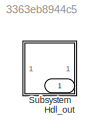
MODEL slx_3363eb8944c5
KIND model
CONFIG AbsTol = auto
CONFIG EnableMultiTasking = off
CONFIG FixedStep = auto
CONFIG MaxStep = auto
CONFIG MinStep = auto
CONFIG RelTol = 1e-3
CONFIG SampleTimeConstraint = Unconstrained
CONFIG SolverName = VariableStepAuto
CONFIG StartTime = 0.0
CONFIG StopTime = 10.0
BLOCK [Outport] Hdl_out
  OutDataTypeStr = uint8
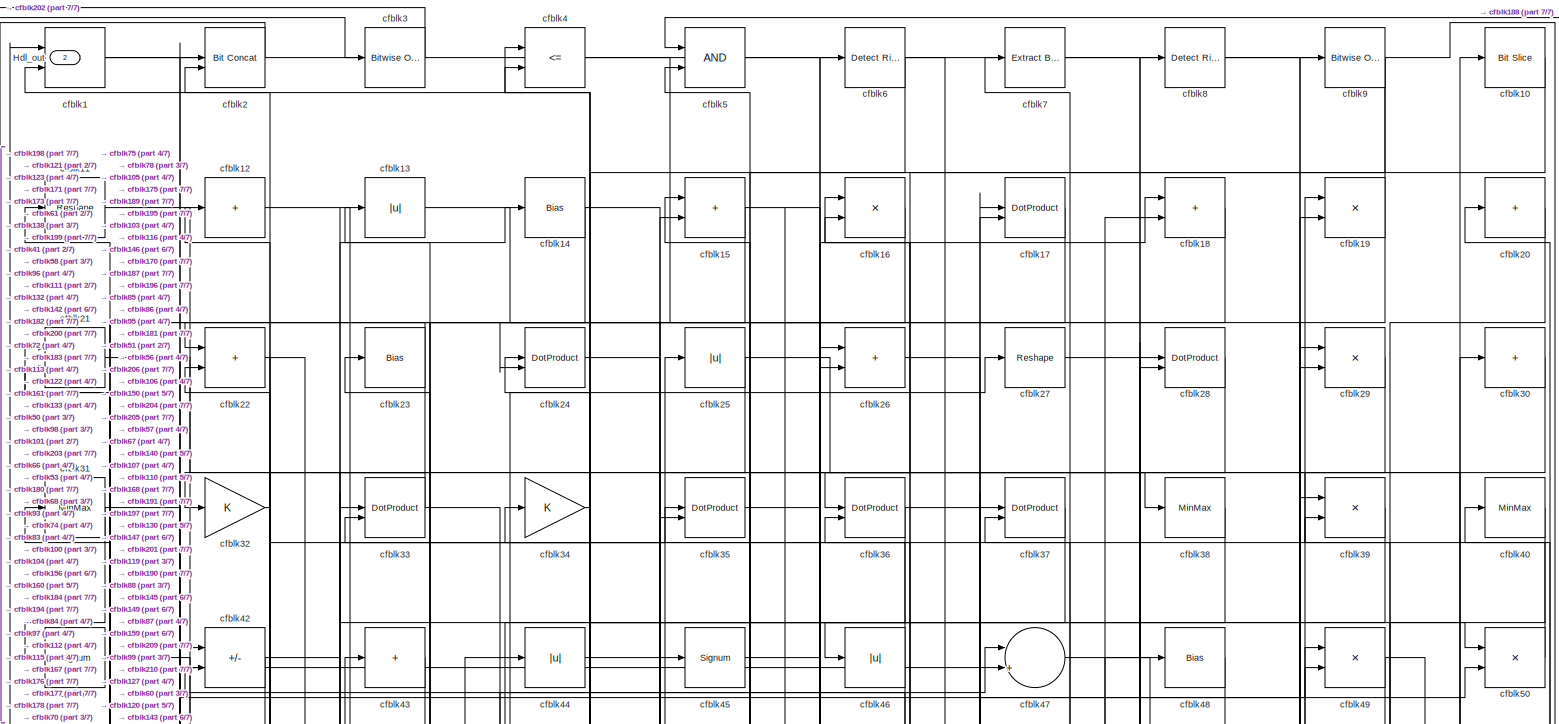
[diagram: Subsystem - part 1/7, full width, top band]
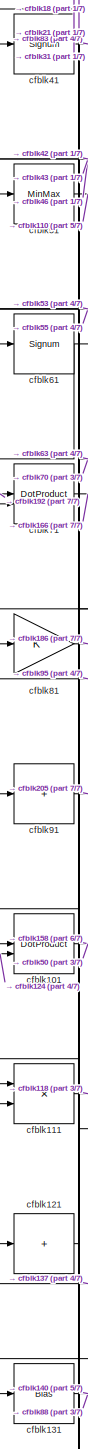
[diagram: Subsystem - part 2/7, middle left region]
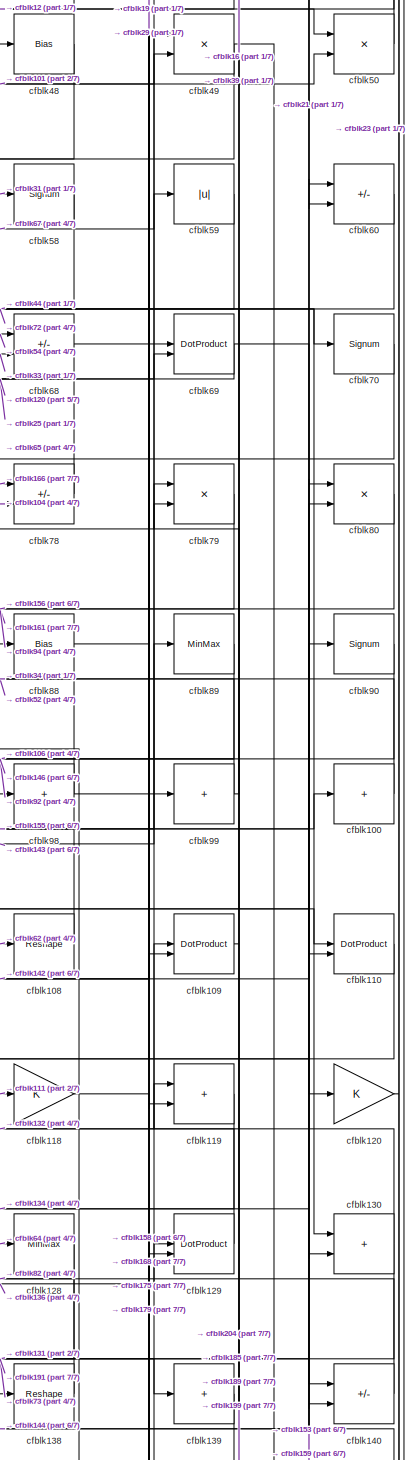
[diagram: Subsystem - part 3/7, middle right region]
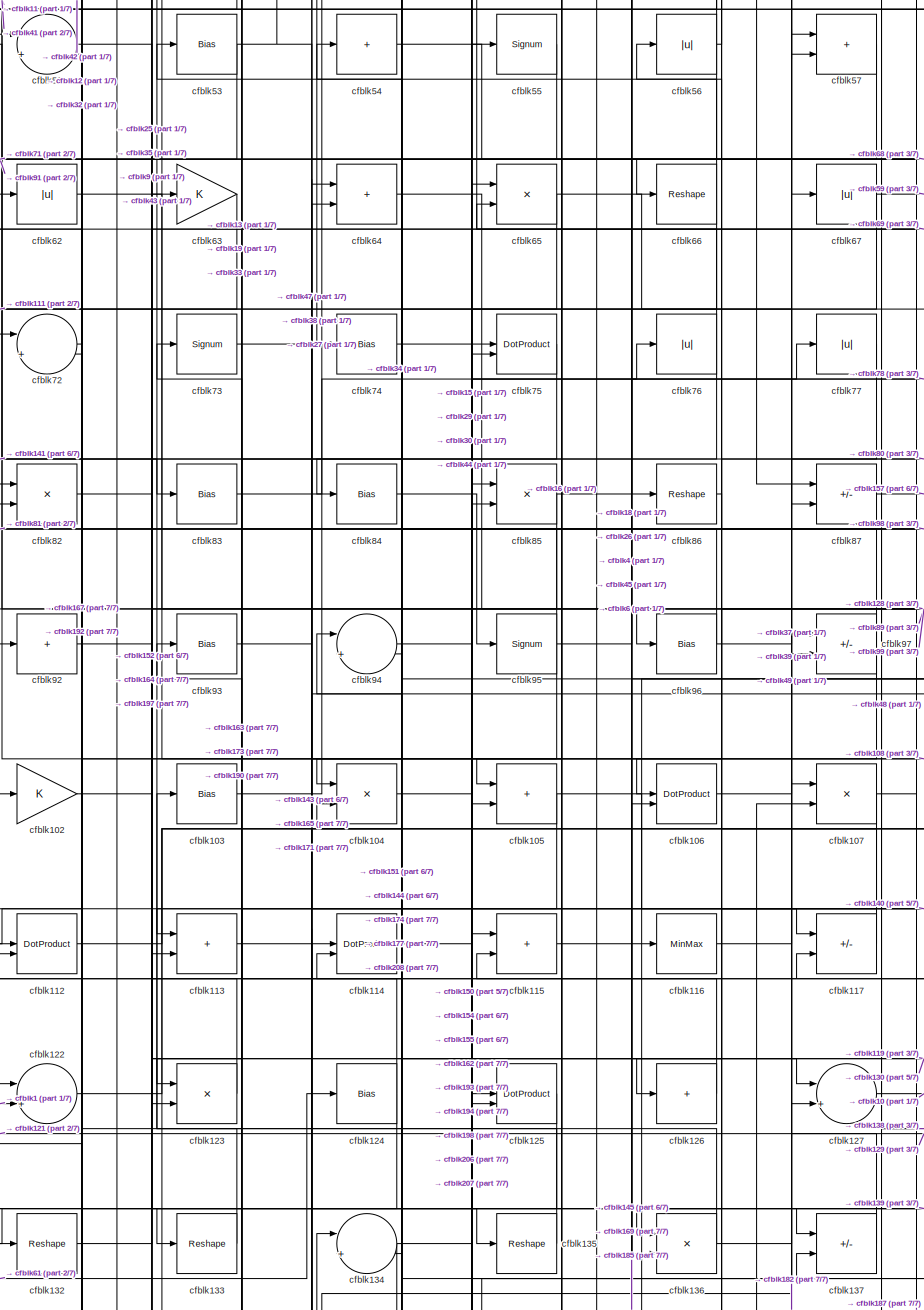
[diagram: Subsystem - part 4/7, central region]
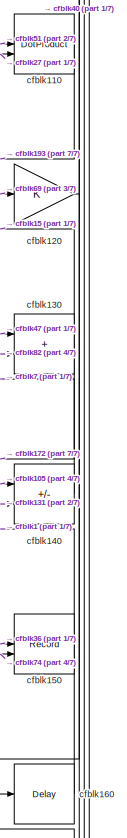
[diagram: Subsystem - part 5/7, middle right region]
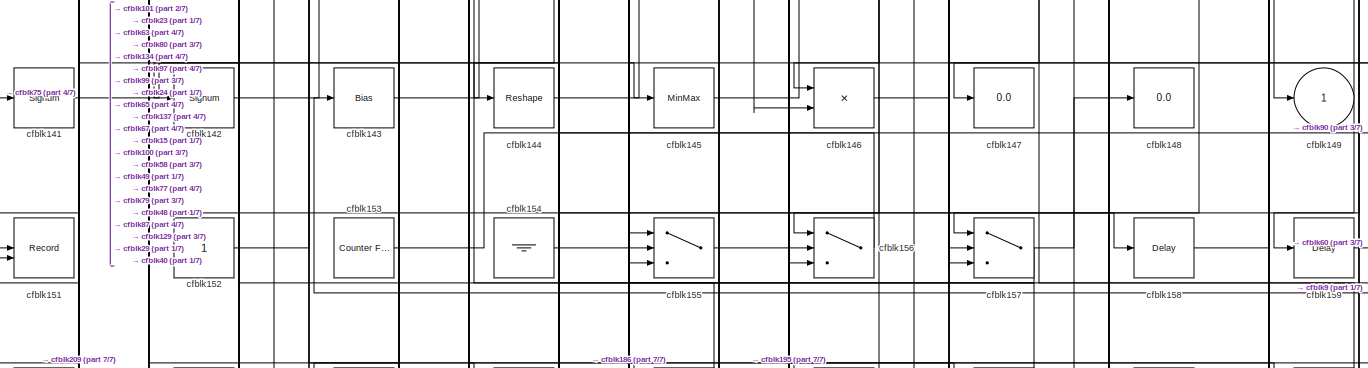
[diagram: Subsystem - part 6/7, full width, bottom band]
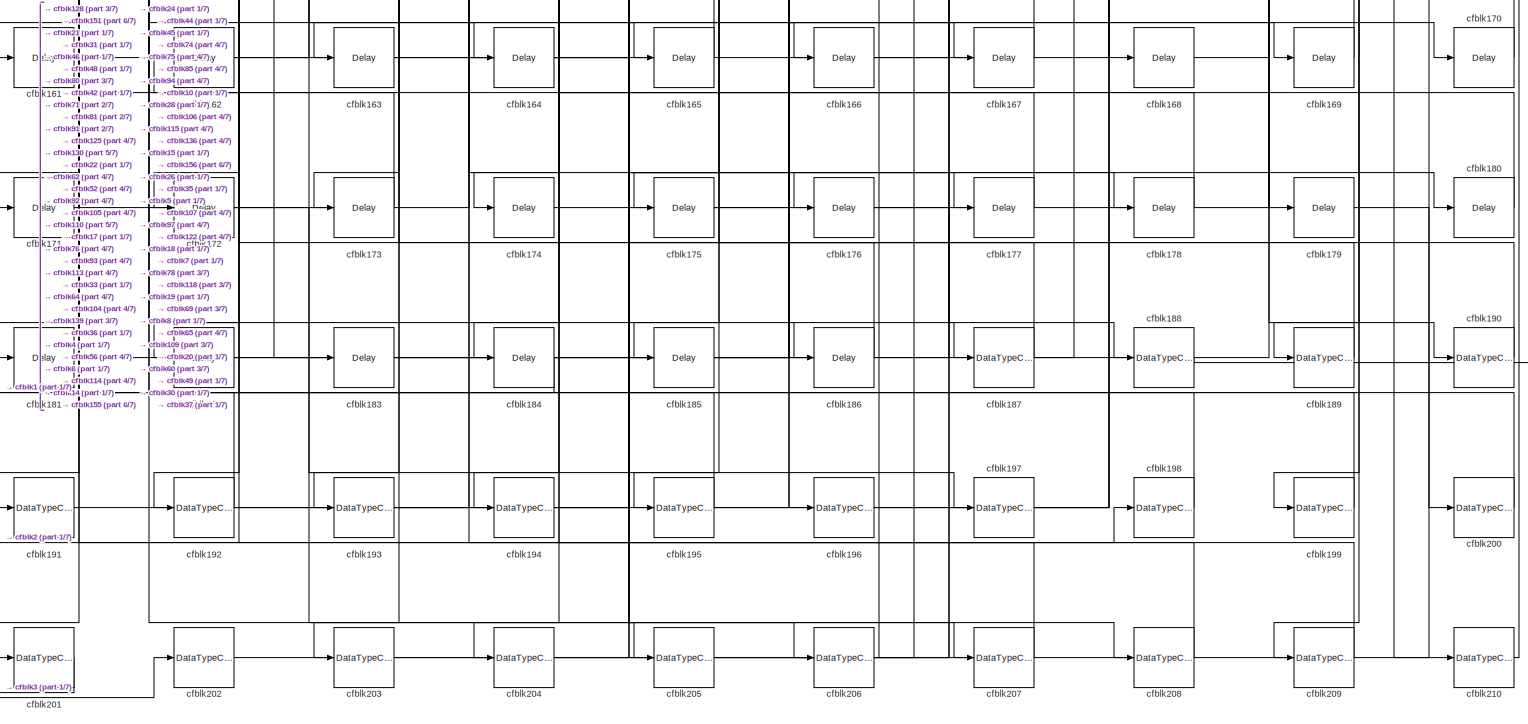
[diagram: Subsystem - part 7/7, full width, bottom band]
BLOCK [SubSystem] Subsystem
BLOCK [Outport] Subsystem/Hdl_out
  OutDataTypeStr = uint8
  Port = 2
BLOCK [RelationalOperator] Subsystem/cfblk1
  InputSameDT = off
  Operator = <=
  OutDataTypeStr = boolean
BLOCK [Reference] Subsystem/cfblk10  REF=hdlsllib/Logic and Bit
Operations/Bit Slice
  SourceBlock = hdlsllib/Logic and Bit\nOperations/Bit Slice
  SourceType = Bit Slice
BLOCK [Sum] Subsystem/cfblk100
  IconShape = rectangular
  Inputs = +
  OutDataTypeStr = uint8
BLOCK [DotProduct] Subsystem/cfblk101
  OutDataTypeStr = uint8
BLOCK [Gain] Subsystem/cfblk102
  OutDataTypeStr = uint8
BLOCK [Bias] Subsystem/cfblk103
  Bias = 0.0
  SaturateOnIntegerOverflow = off
BLOCK [Product] Subsystem/cfblk104
  Inputs = */
  OutDataTypeStr = uint8
  RndMeth = Zero
  SaturateOnIntegerOverflow = on
BLOCK [Sum] Subsystem/cfblk105
  IconShape = rectangular
  OutDataTypeStr = uint8
BLOCK [DotProduct] Subsystem/cfblk106
  OutDataTypeStr = uint8
BLOCK [Product] Subsystem/cfblk107
  Inputs = */
  OutDataTypeStr = uint8
  RndMeth = Zero
  SaturateOnIntegerOverflow = on
BLOCK [Reshape] Subsystem/cfblk108
BLOCK [DotProduct] Subsystem/cfblk109
  OutDataTypeStr = uint8
BLOCK [Reshape] Subsystem/cfblk11
BLOCK [DotProduct] Subsystem/cfblk110
  OutDataTypeStr = uint8
BLOCK [Product] Subsystem/cfblk111
  Inputs = */
  OutDataTypeStr = uint8
  RndMeth = Zero
  SaturateOnIntegerOverflow = on
BLOCK [DotProduct] Subsystem/cfblk112
  OutDataTypeStr = uint8
BLOCK [Sum] Subsystem/cfblk113
  IconShape = rectangular
  OutDataTypeStr = uint8
BLOCK [DotProduct] Subsystem/cfblk114
  OutDataTypeStr = uint8
BLOCK [Sum] Subsystem/cfblk115
  IconShape = rectangular
  OutDataTypeStr = uint8
BLOCK [MinMax] Subsystem/cfblk116
  OutDataTypeStr = uint8
BLOCK [Sum] Subsystem/cfblk117
  IconShape = rectangular
  Inputs = +-
  OutDataTypeStr = uint8
BLOCK [Gain] Subsystem/cfblk118
  OutDataTypeStr = uint8
BLOCK [Sum] Subsystem/cfblk119
  IconShape = rectangular
  OutDataTypeStr = uint8
BLOCK [Sum] Subsystem/cfblk12
  IconShape = rectangular
  Inputs = +
  OutDataTypeStr = uint8
BLOCK [Gain] Subsystem/cfblk120
  OutDataTypeStr = uint8
BLOCK [Sum] Subsystem/cfblk121
  IconShape = rectangular
  Inputs = +
  OutDataTypeStr = uint8
BLOCK [Sum] Subsystem/cfblk122
  Inputs = |++
  OutDataTypeStr = uint8
BLOCK [Product] Subsystem/cfblk123
  Inputs = */
  OutDataTypeStr = uint8
  RndMeth = Zero
  SaturateOnIntegerOverflow = on
BLOCK [Bias] Subsystem/cfblk124
  Bias = 0.0
  SaturateOnIntegerOverflow = off
BLOCK [DotProduct] Subsystem/cfblk125
  OutDataTypeStr = uint8
BLOCK [Sum] Subsystem/cfblk126
  IconShape = rectangular
  Inputs = +
  OutDataTypeStr = uint8
BLOCK [Sum] Subsystem/cfblk127
  Inputs = |++
  OutDataTypeStr = uint8
BLOCK [MinMax] Subsystem/cfblk128
  OutDataTypeStr = uint8
BLOCK [DotProduct] Subsystem/cfblk129
  OutDataTypeStr = uint8
BLOCK [Abs] Subsystem/cfblk13
  OutDataTypeStr = uint8
  SaturateOnIntegerOverflow = off
BLOCK [Sum] Subsystem/cfblk130
  IconShape = rectangular
  OutDataTypeStr = uint8
BLOCK [Bias] Subsystem/cfblk131
  Bias = 0.0
  SaturateOnIntegerOverflow = off
BLOCK [Reshape] Subsystem/cfblk132
BLOCK [Reshape] Subsystem/cfblk133
BLOCK [Sum] Subsystem/cfblk134
  Inputs = |++
  OutDataTypeStr = uint8
BLOCK [Reshape] Subsystem/cfblk135
BLOCK [Product] Subsystem/cfblk136
  Inputs = */
  OutDataTypeStr = uint8
  RndMeth = Zero
  SaturateOnIntegerOverflow = on
BLOCK [Sum] Subsystem/cfblk137
  IconShape = rectangular
  Inputs = +-
  OutDataTypeStr = uint8
BLOCK [Reshape] Subsystem/cfblk138
BLOCK [Sum] Subsystem/cfblk139
  IconShape = rectangular
  Inputs = +
  OutDataTypeStr = uint8
BLOCK [Bias] Subsystem/cfblk14
  Bias = 0.0
  SaturateOnIntegerOverflow = off
BLOCK [Sum] Subsystem/cfblk140
  IconShape = rectangular
  Inputs = +-
  OutDataTypeStr = uint8
BLOCK [Signum] Subsystem/cfblk141
BLOCK [Signum] Subsystem/cfblk142
BLOCK [Bias] Subsystem/cfblk143
  Bias = 0.0
  SaturateOnIntegerOverflow = off
BLOCK [Reshape] Subsystem/cfblk144
BLOCK [MinMax] Subsystem/cfblk145
  OutDataTypeStr = uint8
BLOCK [Product] Subsystem/cfblk146
  Inputs = */
  OutDataTypeStr = uint8
  RndMeth = Zero
  SaturateOnIntegerOverflow = on
BLOCK [Display] Subsystem/cfblk147
  Decimation = 1
BLOCK [Display] Subsystem/cfblk148
  Decimation = 1
BLOCK [Outport] Subsystem/cfblk149
  OutDataTypeStr = uint8
  VectorParamsAs1DForOutWhenUnconnected = off
BLOCK [Sum] Subsystem/cfblk15
  IconShape = rectangular
  OutDataTypeStr = uint8
BLOCK [Record] Subsystem/cfblk150
  CompatibilityTag = XY
  FileSettingsInternal = {"entries":[{"content":{"excelSettings":{"content":{},"type":"Streamout.ExcelSettings"}},"type":"Streamout.FileSettingStorage","uuid":""}],"packageUris":["http:\/\/schema.mathworks.com\/mf0\/streamout_blocks\/R2020a"],"version":"1.0"}
  Layout = [1 1]
  SignalsInternal = {"entries":[{"content":{"signals":[{"content":{"blockPath":[],"dimensions":[1],"domain":"","lineColor":"#a2142f","plots":[1],"port":1,"signalID":39308,"signalName":"cfblk36"},"type":"RecordBlkView.Signal","uuid":""},{"content":{"blockPath":[],"dimensions":[1],"domain":"","lineColor":"#139fff","plots":[1],"port":2,"signalID":39311,"signalName":"cfblk74"},"type":"RecordBlkView.Signal","uuid":""}]},"...<+142ch>
  VisualizationBindings = {"xyplotplugin":{"info":[{"series":[{"bindingParametersList":[{"parameter":"X-Axis","signalID":39308,"signalName":"cfblk36"},{"parameter":"Y-Axis","signalID":39311,"signalName":"cfblk74"}],"seriesID":8752}],"subplotID":1}]}}
  st = -1
BLOCK [Record] Subsystem/cfblk151
  CompatibilityTag = XY
  FileSettingsInternal = {"entries":[{"content":{"excelSettings":{"content":{},"type":"Streamout.ExcelSettings"}},"type":"Streamout.FileSettingStorage","uuid":""}],"packageUris":["http:\/\/schema.mathworks.com\/mf0\/streamout_blocks\/R2020a"],"version":"1.0"}
  Layout = [1 1]
  SignalsInternal = {"entries":[{"content":{"signals":[{"content":{"blockPath":[],"dimensions":[1],"domain":"","lineColor":"#a2142f","plots":[1],"port":1,"signalID":39300,"signalName":"cfblk134"},"type":"RecordBlkView.Signal","uuid":""},{"content":{"blockPath":[],"dimensions":[1],"domain":"","lineColor":"#139fff","plots":[1],"port":2,"signalID":39303,"signalName":"cfblk209"},"type":"RecordBlkView.Signal","uuid":""}]}...<+144ch>
  VisualizationBindings = {"xyplotplugin":{"info":[{"series":[{"bindingParametersList":[{"parameter":"X-Axis","signalID":39300,"signalName":"cfblk134"},{"parameter":"Y-Axis","signalID":39303,"signalName":"cfblk209"}],"seriesID":24142}],"subplotID":1}]}}
  st = -1
BLOCK [Constant] Subsystem/cfblk152
  OutDataTypeStr = uint8
  SampleTime = -1
BLOCK [Reference] Subsystem/cfblk153  REF=hdlsllib/Sources/Counter
Free-Running
  SourceBlock = hdlsllib/Sources/Counter\nFree-Running
  SourceType = Counter Free-Running
BLOCK [Ground] Subsystem/cfblk154
BLOCK [Switch] Subsystem/cfblk155
  InputSameDT = off
  OutDataTypeStr = uint8
  SaturateOnIntegerOverflow = off
BLOCK [Switch] Subsystem/cfblk156
  InputSameDT = off
  OutDataTypeStr = uint8
  SaturateOnIntegerOverflow = off
BLOCK [Switch] Subsystem/cfblk157
  InputSameDT = off
  OutDataTypeStr = uint8
  SaturateOnIntegerOverflow = off
BLOCK [Delay] Subsystem/cfblk158
  InputPortMap = u0
  SampleTime = 1
BLOCK [Delay] Subsystem/cfblk159
  InputPortMap = u0
  SampleTime = 1
BLOCK [Product] Subsystem/cfblk16
  Inputs = */
  OutDataTypeStr = uint8
  RndMeth = Zero
  SaturateOnIntegerOverflow = on
BLOCK [Delay] Subsystem/cfblk160
  InputPortMap = u0
  SampleTime = 1
BLOCK [Delay] Subsystem/cfblk161
  InputPortMap = u0
  SampleTime = 1
BLOCK [Delay] Subsystem/cfblk162
  InputPortMap = u0
  SampleTime = 1
BLOCK [Delay] Subsystem/cfblk163
  InputPortMap = u0
  SampleTime = 1
BLOCK [Delay] Subsystem/cfblk164
  InputPortMap = u0
  SampleTime = 1
BLOCK [Delay] Subsystem/cfblk165
  InputPortMap = u0
  SampleTime = 1
BLOCK [Delay] Subsystem/cfblk166
  InputPortMap = u0
  SampleTime = 1
BLOCK [Delay] Subsystem/cfblk167
  InputPortMap = u0
  SampleTime = 1
BLOCK [Delay] Subsystem/cfblk168
  InputPortMap = u0
  SampleTime = 1
BLOCK [Delay] Subsystem/cfblk169
  InputPortMap = u0
  SampleTime = 1
BLOCK [DotProduct] Subsystem/cfblk17
  OutDataTypeStr = uint8
BLOCK [Delay] Subsystem/cfblk170
  InputPortMap = u0
  SampleTime = 1
BLOCK [Delay] Subsystem/cfblk171
  InputPortMap = u0
  SampleTime = 1
BLOCK [Delay] Subsystem/cfblk172
  InputPortMap = u0
  SampleTime = 1
BLOCK [Delay] Subsystem/cfblk173
  InputPortMap = u0
  SampleTime = 1
BLOCK [Delay] Subsystem/cfblk174
  InputPortMap = u0
  SampleTime = 1
BLOCK [Delay] Subsystem/cfblk175
  InputPortMap = u0
  SampleTime = 1
BLOCK [Delay] Subsystem/cfblk176
  InputPortMap = u0
  SampleTime = 1
BLOCK [Delay] Subsystem/cfblk177
  InputPortMap = u0
  SampleTime = 1
BLOCK [Delay] Subsystem/cfblk178
  InputPortMap = u0
  SampleTime = 1
BLOCK [Delay] Subsystem/cfblk179
  InputPortMap = u0
  SampleTime = 1
BLOCK [Sum] Subsystem/cfblk18
  IconShape = rectangular
  OutDataTypeStr = uint8
BLOCK [Delay] Subsystem/cfblk180
  InputPortMap = u0
  SampleTime = 1
BLOCK [Delay] Subsystem/cfblk181
  InputPortMap = u0
  SampleTime = 1
BLOCK [Delay] Subsystem/cfblk182
  InputPortMap = u0
  SampleTime = 1
BLOCK [Delay] Subsystem/cfblk183
  InputPortMap = u0
  SampleTime = 1
BLOCK [Delay] Subsystem/cfblk184
  InputPortMap = u0
  SampleTime = 1
BLOCK [Delay] Subsystem/cfblk185
  InputPortMap = u0
  SampleTime = 1
BLOCK [Delay] Subsystem/cfblk186
  InputPortMap = u0
  SampleTime = 1
BLOCK [DataTypeConversion] Subsystem/cfblk187
  OutDataTypeStr = uint8
  RndMeth = Floor
  SaturateOnIntegerOverflow = off
BLOCK [DataTypeConversion] Subsystem/cfblk188
  OutDataTypeStr = uint8
  RndMeth = Floor
  SaturateOnIntegerOverflow = off
BLOCK [DataTypeConversion] Subsystem/cfblk189
  OutDataTypeStr = uint8
  RndMeth = Floor
  SaturateOnIntegerOverflow = off
BLOCK [Product] Subsystem/cfblk19
  Inputs = */
  OutDataTypeStr = uint8
  RndMeth = Zero
  SaturateOnIntegerOverflow = on
BLOCK [DataTypeConversion] Subsystem/cfblk190
  OutDataTypeStr = uint8
  RndMeth = Floor
  SaturateOnIntegerOverflow = off
BLOCK [DataTypeConversion] Subsystem/cfblk191
  OutDataTypeStr = uint8
  RndMeth = Floor
  SaturateOnIntegerOverflow = off
BLOCK [DataTypeConversion] Subsystem/cfblk192
  OutDataTypeStr = uint8
  RndMeth = Floor
  SaturateOnIntegerOverflow = off
BLOCK [DataTypeConversion] Subsystem/cfblk193
  OutDataTypeStr = uint8
  RndMeth = Floor
  SaturateOnIntegerOverflow = off
BLOCK [DataTypeConversion] Subsystem/cfblk194
  OutDataTypeStr = uint8
  RndMeth = Floor
  SaturateOnIntegerOverflow = off
BLOCK [DataTypeConversion] Subsystem/cfblk195
  OutDataTypeStr = uint8
  RndMeth = Floor
  SaturateOnIntegerOverflow = off
BLOCK [DataTypeConversion] Subsystem/cfblk196
  OutDataTypeStr = uint8
  RndMeth = Floor
  SaturateOnIntegerOverflow = off
BLOCK [DataTypeConversion] Subsystem/cfblk197
  OutDataTypeStr = uint8
  RndMeth = Floor
  SaturateOnIntegerOverflow = off
BLOCK [DataTypeConversion] Subsystem/cfblk198
  OutDataTypeStr = uint8
  RndMeth = Floor
  SaturateOnIntegerOverflow = off
BLOCK [DataTypeConversion] Subsystem/cfblk199
  OutDataTypeStr = uint8
  RndMeth = Floor
  SaturateOnIntegerOverflow = off
BLOCK [Reference] Subsystem/cfblk2  REF=hdlsllib/Logic and Bit
Operations/Bit Concat
  SourceBlock = hdlsllib/Logic and Bit\nOperations/Bit Concat
  SourceType = Bit Concat
BLOCK [Sum] Subsystem/cfblk20
  IconShape = rectangular
  Inputs = +
  OutDataTypeStr = uint8
BLOCK [DataTypeConversion] Subsystem/cfblk200
  OutDataTypeStr = uint8
  RndMeth = Floor
  SaturateOnIntegerOverflow = off
BLOCK [DataTypeConversion] Subsystem/cfblk201
  OutDataTypeStr = uint8
  RndMeth = Floor
  SaturateOnIntegerOverflow = off
BLOCK [DataTypeConversion] Subsystem/cfblk202
  OutDataTypeStr = uint8
  RndMeth = Floor
  SaturateOnIntegerOverflow = off
BLOCK [DataTypeConversion] Subsystem/cfblk203
  OutDataTypeStr = uint8
  RndMeth = Floor
  SaturateOnIntegerOverflow = off
BLOCK [DataTypeConversion] Subsystem/cfblk204
  OutDataTypeStr = uint8
  RndMeth = Floor
  SaturateOnIntegerOverflow = off
BLOCK [DataTypeConversion] Subsystem/cfblk205
  OutDataTypeStr = uint8
  RndMeth = Floor
  SaturateOnIntegerOverflow = off
BLOCK [DataTypeConversion] Subsystem/cfblk206
  OutDataTypeStr = uint8
  RndMeth = Floor
  SaturateOnIntegerOverflow = off
BLOCK [DataTypeConversion] Subsystem/cfblk207
  OutDataTypeStr = uint8
  RndMeth = Floor
  SaturateOnIntegerOverflow = off
BLOCK [DataTypeConversion] Subsystem/cfblk208
  OutDataTypeStr = uint8
  RndMeth = Floor
  SaturateOnIntegerOverflow = off
BLOCK [DataTypeConversion] Subsystem/cfblk209
  OutDataTypeStr = uint8
  RndMeth = Floor
  SaturateOnIntegerOverflow = off
BLOCK [Product] Subsystem/cfblk21
  Inputs = */
  OutDataTypeStr = uint8
  RndMeth = Zero
  SaturateOnIntegerOverflow = on
BLOCK [DataTypeConversion] Subsystem/cfblk210
  OutDataTypeStr = uint8
  RndMeth = Floor
  SaturateOnIntegerOverflow = off
BLOCK [Sum] Subsystem/cfblk22
  IconShape = rectangular
  OutDataTypeStr = uint8
BLOCK [Bias] Subsystem/cfblk23
  Bias = 0.0
  SaturateOnIntegerOverflow = off
BLOCK [DotProduct] Subsystem/cfblk24
  OutDataTypeStr = uint8
BLOCK [Abs] Subsystem/cfblk25
  OutDataTypeStr = uint8
  SaturateOnIntegerOverflow = off
BLOCK [Sum] Subsystem/cfblk26
  IconShape = rectangular
  OutDataTypeStr = uint8
BLOCK [Reshape] Subsystem/cfblk27
BLOCK [DotProduct] Subsystem/cfblk28
  OutDataTypeStr = uint8
BLOCK [Product] Subsystem/cfblk29
  Inputs = */
  OutDataTypeStr = uint8
  RndMeth = Zero
  SaturateOnIntegerOverflow = on
BLOCK [Reference] Subsystem/cfblk3  REF=simulink/Logic and Bit
Operations/Bitwise
Operator
  LibrarySourceBlock = hdlsllib/Logic and Bit\nOperations/Bitwise\nOperator
  SourceBlock = simulink/Logic and Bit\nOperations/Bitwise\nOperator
  SourceType = Bitwise Operator
BLOCK [Sum] Subsystem/cfblk30
  IconShape = rectangular
  Inputs = +
  OutDataTypeStr = uint8
BLOCK [MinMax] Subsystem/cfblk31
  OutDataTypeStr = uint8
BLOCK [Gain] Subsystem/cfblk32
  OutDataTypeStr = uint8
BLOCK [DotProduct] Subsystem/cfblk33
  OutDataTypeStr = uint8
BLOCK [Gain] Subsystem/cfblk34
  OutDataTypeStr = uint8
BLOCK [DotProduct] Subsystem/cfblk35
  OutDataTypeStr = uint8
BLOCK [DotProduct] Subsystem/cfblk36
  OutDataTypeStr = uint8
BLOCK [DotProduct] Subsystem/cfblk37
  OutDataTypeStr = uint8
BLOCK [MinMax] Subsystem/cfblk38
  OutDataTypeStr = uint8
BLOCK [Product] Subsystem/cfblk39
  Inputs = */
  OutDataTypeStr = uint8
  RndMeth = Zero
  SaturateOnIntegerOverflow = on
BLOCK [RelationalOperator] Subsystem/cfblk4
  InputSameDT = off
  Operator = <=
  OutDataTypeStr = boolean
BLOCK [MinMax] Subsystem/cfblk40
  OutDataTypeStr = uint8
BLOCK [Signum] Subsystem/cfblk41
BLOCK [Sum] Subsystem/cfblk42
  IconShape = rectangular
  Inputs = +-
  OutDataTypeStr = uint8
BLOCK [Sum] Subsystem/cfblk43
  IconShape = rectangular
  Inputs = +
  OutDataTypeStr = uint8
BLOCK [Abs] Subsystem/cfblk44
  OutDataTypeStr = uint8
  SaturateOnIntegerOverflow = off
BLOCK [Signum] Subsystem/cfblk45
BLOCK [Abs] Subsystem/cfblk46
  OutDataTypeStr = uint8
  SaturateOnIntegerOverflow = off
BLOCK [Sum] Subsystem/cfblk47
  Inputs = |++
  OutDataTypeStr = uint8
BLOCK [Bias] Subsystem/cfblk48
  Bias = 0.0
  SaturateOnIntegerOverflow = off
BLOCK [Product] Subsystem/cfblk49
  Inputs = */
  OutDataTypeStr = uint8
  RndMeth = Zero
  SaturateOnIntegerOverflow = on
BLOCK [Logic] Subsystem/cfblk5
  AllPortsSameDT = off
  OutDataTypeStr = boolean
BLOCK [Product] Subsystem/cfblk50
  Inputs = */
  OutDataTypeStr = uint8
  RndMeth = Zero
  SaturateOnIntegerOverflow = on
BLOCK [MinMax] Subsystem/cfblk51
  OutDataTypeStr = uint8
BLOCK [Sum] Subsystem/cfblk52
  Inputs = |++
  OutDataTypeStr = uint8
BLOCK [Bias] Subsystem/cfblk53
  Bias = 0.0
  SaturateOnIntegerOverflow = off
BLOCK [Sum] Subsystem/cfblk54
  IconShape = rectangular
  Inputs = +
  OutDataTypeStr = uint8
BLOCK [Signum] Subsystem/cfblk55
BLOCK [Abs] Subsystem/cfblk56
  OutDataTypeStr = uint8
  SaturateOnIntegerOverflow = off
BLOCK [Sum] Subsystem/cfblk57
  IconShape = rectangular
  OutDataTypeStr = uint8
BLOCK [Signum] Subsystem/cfblk58
BLOCK [Abs] Subsystem/cfblk59
  OutDataTypeStr = uint8
  SaturateOnIntegerOverflow = off
BLOCK [Reference] Subsystem/cfblk6  REF=hdlsllib/Logic and Bit
Operations/Detect Rise
Positive
  SourceBlock = hdlsllib/Logic and Bit\nOperations/Detect Rise\nPositive
  SourceType = Detect Rise Positive
BLOCK [Sum] Subsystem/cfblk60
  IconShape = rectangular
  Inputs = +-
  OutDataTypeStr = uint8
BLOCK [Signum] Subsystem/cfblk61
BLOCK [Abs] Subsystem/cfblk62
  OutDataTypeStr = uint8
  SaturateOnIntegerOverflow = off
BLOCK [Gain] Subsystem/cfblk63
  OutDataTypeStr = uint8
BLOCK [Sum] Subsystem/cfblk64
  IconShape = rectangular
  OutDataTypeStr = uint8
BLOCK [Product] Subsystem/cfblk65
  Inputs = */
  OutDataTypeStr = uint8
  RndMeth = Zero
  SaturateOnIntegerOverflow = on
BLOCK [Reshape] Subsystem/cfblk66
BLOCK [Abs] Subsystem/cfblk67
  OutDataTypeStr = uint8
  SaturateOnIntegerOverflow = off
BLOCK [Sum] Subsystem/cfblk68
  IconShape = rectangular
  Inputs = +-
  OutDataTypeStr = uint8
BLOCK [DotProduct] Subsystem/cfblk69
  OutDataTypeStr = uint8
BLOCK [Reference] Subsystem/cfblk7  REF=simulink/Logic and Bit
Operations/Extract Bits
  LibrarySourceBlock = hdlsllib/Logic and Bit\nOperations/Extract Bits
  SourceBlock = simulink/Logic and Bit\nOperations/Extract Bits
  SourceType = Extract Bits
BLOCK [Signum] Subsystem/cfblk70
BLOCK [DotProduct] Subsystem/cfblk71
  OutDataTypeStr = uint8
BLOCK [Sum] Subsystem/cfblk72
  Inputs = |++
  OutDataTypeStr = uint8
BLOCK [Signum] Subsystem/cfblk73
BLOCK [Bias] Subsystem/cfblk74
  Bias = 0.0
  SaturateOnIntegerOverflow = off
BLOCK [DotProduct] Subsystem/cfblk75
  OutDataTypeStr = uint8
BLOCK [Abs] Subsystem/cfblk76
  OutDataTypeStr = uint8
  SaturateOnIntegerOverflow = off
BLOCK [Abs] Subsystem/cfblk77
  OutDataTypeStr = uint8
  SaturateOnIntegerOverflow = off
BLOCK [Sum] Subsystem/cfblk78
  IconShape = rectangular
  Inputs = +-
  OutDataTypeStr = uint8
BLOCK [Product] Subsystem/cfblk79
  Inputs = */
  OutDataTypeStr = uint8
  RndMeth = Zero
  SaturateOnIntegerOverflow = on
BLOCK [Reference] Subsystem/cfblk8  REF=hdlsllib/Logic and Bit
Operations/Detect Rise
Positive
  SourceBlock = hdlsllib/Logic and Bit\nOperations/Detect Rise\nPositive
  SourceType = Detect Rise Positive
BLOCK [Product] Subsystem/cfblk80
  Inputs = */
  OutDataTypeStr = uint8
  RndMeth = Zero
  SaturateOnIntegerOverflow = on
BLOCK [Gain] Subsystem/cfblk81
  OutDataTypeStr = uint8
BLOCK [Product] Subsystem/cfblk82
  Inputs = */
  OutDataTypeStr = uint8
  RndMeth = Zero
  SaturateOnIntegerOverflow = on
BLOCK [Bias] Subsystem/cfblk83
  Bias = 0.0
  SaturateOnIntegerOverflow = off
BLOCK [Bias] Subsystem/cfblk84
  Bias = 0.0
  SaturateOnIntegerOverflow = off
BLOCK [Product] Subsystem/cfblk85
  Inputs = */
  OutDataTypeStr = uint8
  RndMeth = Zero
  SaturateOnIntegerOverflow = on
BLOCK [Reshape] Subsystem/cfblk86
BLOCK [Sum] Subsystem/cfblk87
  IconShape = rectangular
  Inputs = +-
  OutDataTypeStr = uint8
BLOCK [Bias] Subsystem/cfblk88
  Bias = 0.0
  SaturateOnIntegerOverflow = off
BLOCK [MinMax] Subsystem/cfblk89
  OutDataTypeStr = uint8
BLOCK [Reference] Subsystem/cfblk9  REF=simulink/Logic and Bit
Operations/Bitwise
Operator
  LibrarySourceBlock = hdlsllib/Logic and Bit\nOperations/Bitwise\nOperator
  SourceBlock = simulink/Logic and Bit\nOperations/Bitwise\nOperator
  SourceType = Bitwise Operator
BLOCK [Signum] Subsystem/cfblk90
BLOCK [Sum] Subsystem/cfblk91
  IconShape = rectangular
  Inputs = +
  OutDataTypeStr = uint8
BLOCK [Sum] Subsystem/cfblk92
  IconShape = rectangular
  Inputs = +
  OutDataTypeStr = uint8
BLOCK [Bias] Subsystem/cfblk93
  Bias = 0.0
  SaturateOnIntegerOverflow = off
BLOCK [Sum] Subsystem/cfblk94
  Inputs = |++
  OutDataTypeStr = uint8
BLOCK [Signum] Subsystem/cfblk95
BLOCK [Bias] Subsystem/cfblk96
  Bias = 0.0
  SaturateOnIntegerOverflow = off
BLOCK [Sum] Subsystem/cfblk97
  IconShape = rectangular
  Inputs = +-
  OutDataTypeStr = uint8
BLOCK [Sum] Subsystem/cfblk98
  IconShape = rectangular
  Inputs = +
  OutDataTypeStr = uint8
BLOCK [Sum] Subsystem/cfblk99
  IconShape = rectangular
  Inputs = +
  OutDataTypeStr = uint8
LINE Subsystem/cfblk100:1 -> Subsystem/cfblk34:1
NET Subsystem/cfblk101:1 -> Subsystem/cfblk158:1, Subsystem/cfblk50:2
LINE Subsystem/cfblk102:1 -> Subsystem/cfblk135:1
LINE Subsystem/cfblk103:1 -> Subsystem/cfblk6:1
LINE Subsystem/cfblk104:1 -> Subsystem/cfblk78:2
NET Subsystem/cfblk105:1 -> Subsystem/cfblk140:1, Subsystem/cfblk173:1
LINE Subsystem/cfblk106:1 -> Subsystem/cfblk37:1
NET Subsystem/cfblk107:1 -> Subsystem/cfblk126:1, Subsystem/cfblk48:1
LINE Subsystem/cfblk108:1 -> Subsystem/cfblk54:1
NET Subsystem/cfblk109:1 -> Subsystem/cfblk199:1, Subsystem/cfblk79:2
LINE Subsystem/cfblk10:1 -> Subsystem/cfblk175:1
LINE Subsystem/cfblk110:1 -> Subsystem/cfblk193:1
LINE Subsystem/cfblk111:1 -> Subsystem/cfblk118:1
NET Subsystem/cfblk112:1 -> Subsystem/cfblk15:2, Subsystem/cfblk29:1
LINE Subsystem/cfblk113:1 -> Subsystem/cfblk165:1
LINE Subsystem/cfblk114:1 -> Subsystem/cfblk206:1
LINE Subsystem/cfblk115:1 -> Subsystem/cfblk169:1
LINE Subsystem/cfblk116:1 -> Subsystem/cfblk57:1
LINE Subsystem/cfblk117:1 -> Subsystem/cfblk56:1
LINE Subsystem/cfblk118:1 -> Subsystem/cfblk179:1
LINE Subsystem/cfblk119:1 -> Subsystem/cfblk134:2
LINE Subsystem/cfblk11:1 -> Subsystem/cfblk96:1
NET Subsystem/cfblk120:1 -> Subsystem/cfblk160:1, Subsystem/cfblk40:1
LINE Subsystem/cfblk121:1 -> Subsystem/cfblk21:1
NET Subsystem/cfblk122:1 -> Subsystem/cfblk35:1, Subsystem/cfblk9:1
LINE Subsystem/cfblk123:1 -> Subsystem/cfblk11:1
NET Subsystem/cfblk124:1 -> Subsystem/cfblk112:2, Subsystem/cfblk133:1
LINE Subsystem/cfblk125:1 -> Subsystem/cfblk192:1
LINE Subsystem/cfblk126:1 -> Subsystem/cfblk73:1
LINE Subsystem/cfblk127:1 -> Subsystem/cfblk10:1
LINE Subsystem/cfblk128:1 -> Subsystem/cfblk191:1
LINE Subsystem/cfblk129:1 -> Subsystem/cfblk109:1
NET Subsystem/cfblk12:1 -> Subsystem/cfblk50:1, Subsystem/cfblk98:1
NET Subsystem/cfblk130:1 -> Subsystem/cfblk15:1, Subsystem/cfblk172:1
NET Subsystem/cfblk131:1 -> Subsystem/cfblk140:2, Subsystem/cfblk88:1
NET Subsystem/cfblk132:1 -> Subsystem/cfblk117:2, Subsystem/cfblk119:1, Subsystem/cfblk69:2
LINE Subsystem/cfblk133:1 -> Subsystem/cfblk43:1
NET Subsystem/cfblk134:1 -> Subsystem/cfblk151:1, Subsystem/cfblk76:1
LINE Subsystem/cfblk135:1 -> Subsystem/cfblk103:1
NET Subsystem/cfblk136:1 -> Subsystem/cfblk115:2, Subsystem/cfblk129:1, Subsystem/cfblk72:2
LINE Subsystem/cfblk137:1 -> Subsystem/cfblk121:1
LINE Subsystem/cfblk138:1 -> Subsystem/cfblk82:1
LINE Subsystem/cfblk139:1 -> Subsystem/cfblk204:1
LINE Subsystem/cfblk13:1 -> Subsystem/cfblk115:1
LINE Subsystem/cfblk140:1 -> Subsystem/cfblk7:1
LINE Subsystem/cfblk141:1 -> Subsystem/cfblk145:1
LINE Subsystem/cfblk142:1 -> Subsystem/cfblk80:1
NET Subsystem/cfblk143:1 -> Subsystem/cfblk97:1, Subsystem/cfblk99:1
LINE Subsystem/cfblk144:1 -> Subsystem/cfblk80:2
NET Subsystem/cfblk145:1 -> Subsystem/cfblk49:1, Subsystem/cfblk77:1
LINE Subsystem/cfblk146:1 -> Subsystem/cfblk157:2
NET Subsystem/cfblk14:1 -> Subsystem/cfblk178:1, Subsystem/cfblk24:2
LINE Subsystem/cfblk152:1 -> Subsystem/cfblk63:1
LINE Subsystem/cfblk153:1 -> Subsystem/cfblk90:1
LINE Subsystem/cfblk154:1 -> Subsystem/cfblk137:2
NET Subsystem/cfblk155:1 -> Subsystem/cfblk100:1, Subsystem/cfblk79:1
LINE Subsystem/cfblk156:1 -> Subsystem/cfblk24:1
NET Subsystem/cfblk157:1 -> Subsystem/cfblk134:1, Subsystem/cfblk148:1
LINE Subsystem/cfblk158:1 -> Subsystem/cfblk129:2
LINE Subsystem/cfblk159:1 -> Subsystem/cfblk60:1
NET Subsystem/cfblk15:1 -> Subsystem/cfblk146:2, Subsystem/cfblk170:1, Subsystem/cfblk171:1
LINE Subsystem/cfblk160:1 -> Subsystem/cfblk1:2
LINE Subsystem/cfblk161:1 -> Subsystem/cfblk33:1
LINE Subsystem/cfblk162:1 -> Subsystem/cfblk75:1
LINE Subsystem/cfblk163:1 -> Subsystem/cfblk85:2
LINE Subsystem/cfblk164:1 -> Subsystem/cfblk107:1
LINE Subsystem/cfblk165:1 -> Subsystem/cfblk94:1
LINE Subsystem/cfblk166:1 -> Subsystem/cfblk78:1
LINE Subsystem/cfblk167:1 -> Subsystem/cfblk122:1
LINE Subsystem/cfblk168:1 -> Subsystem/cfblk109:2
LINE Subsystem/cfblk169:1 -> Subsystem/cfblk65:1
LINE Subsystem/cfblk16:1 -> Subsystem/cfblk105:1
LINE Subsystem/cfblk170:1 -> Subsystem/cfblk37:2
LINE Subsystem/cfblk171:1 -> Subsystem/cfblk64:1
LINE Subsystem/cfblk172:1 -> Subsystem/cfblk208:1
LINE Subsystem/cfblk173:1 -> Subsystem/cfblk21:2
LINE Subsystem/cfblk174:1 -> Subsystem/cfblk106:2
LINE Subsystem/cfblk175:1 -> Subsystem/cfblk69:1
LINE Subsystem/cfblk176:1 -> Subsystem/cfblk188:1
LINE Subsystem/cfblk177:1 -> Subsystem/cfblk104:2
LINE Subsystem/cfblk178:1 -> Subsystem/cfblk42:1
LINE Subsystem/cfblk179:1 -> Subsystem/cfblk200:1
LINE Subsystem/cfblk17:1 -> Subsystem/cfblk203:1
LINE Subsystem/cfblk180:1 -> Subsystem/cfblk4:2
LINE Subsystem/cfblk181:1 -> Subsystem/cfblk26:2
LINE Subsystem/cfblk182:1 -> Subsystem/cfblk97:2
LINE Subsystem/cfblk183:1 -> Subsystem/cfblk19:2
LINE Subsystem/cfblk184:1 -> Subsystem/cfblk1:1
LINE Subsystem/cfblk185:1 -> Subsystem/cfblk136:2
LINE Subsystem/cfblk186:1 -> Subsystem/cfblk155:1
NET Subsystem/cfblk187:1 -> Subsystem/cfblk18:2, Subsystem/cfblk62:1
LINE Subsystem/cfblk188:1 -> Subsystem/cfblk5:1
LINE Subsystem/cfblk189:1 -> Subsystem/cfblk5:2
LINE Subsystem/cfblk18:1 -> Subsystem/cfblk61:1
LINE Subsystem/cfblk190:1 -> Subsystem/cfblk93:1
LINE Subsystem/cfblk191:1 -> Subsystem/cfblk8:1
NET Subsystem/cfblk192:1 -> Subsystem/cfblk64:2, Subsystem/cfblk71:1
LINE Subsystem/cfblk193:1 -> Subsystem/cfblk125:1
LINE Subsystem/cfblk194:1 -> Subsystem/cfblk125:2
NET Subsystem/cfblk195:1 -> Subsystem/cfblk156:3, Subsystem/cfblk31:1
LINE Subsystem/cfblk196:1 -> Subsystem/cfblk28:1
LINE Subsystem/cfblk197:1 -> Subsystem/cfblk28:2
LINE Subsystem/cfblk198:1 -> Subsystem/cfblk85:1
LINE Subsystem/cfblk199:1 -> Subsystem/cfblk2:1
NET Subsystem/cfblk19:1 -> Subsystem/Hdl_out:1, Subsystem/cfblk119:2, Subsystem/cfblk123:1
LINE Subsystem/cfblk1:1 -> Subsystem/cfblk122:2
LINE Subsystem/cfblk200:1 -> Subsystem/cfblk2:2
LINE Subsystem/cfblk201:1 -> Subsystem/cfblk3:1
LINE Subsystem/cfblk202:1 -> Subsystem/cfblk45:1
NET Subsystem/cfblk203:1 -> Subsystem/cfblk30:1, Subsystem/cfblk35:2
LINE Subsystem/cfblk204:1 -> Subsystem/cfblk17:1
LINE Subsystem/cfblk205:1 -> Subsystem/cfblk17:2
NET Subsystem/cfblk206:1 -> Subsystem/cfblk107:2, Subsystem/cfblk36:2
LINE Subsystem/cfblk207:1 -> Subsystem/cfblk114:1
LINE Subsystem/cfblk208:1 -> Subsystem/cfblk114:2
NET Subsystem/cfblk209:1 -> Subsystem/cfblk151:2, Subsystem/cfblk162:1
LINE Subsystem/cfblk20:1 -> Subsystem/cfblk209:1
LINE Subsystem/cfblk210:1 -> Subsystem/cfblk20:1
NET Subsystem/cfblk21:1 -> Subsystem/cfblk47:2, Subsystem/cfblk60:2
NET Subsystem/cfblk22:1 -> Subsystem/cfblk182:1, Subsystem/cfblk183:1
NET Subsystem/cfblk23:1 -> Subsystem/cfblk142:1, Subsystem/cfblk22:1
NET Subsystem/cfblk24:1 -> Subsystem/cfblk176:1, Subsystem/cfblk177:1
NET Subsystem/cfblk25:1 -> Subsystem/cfblk113:2, Subsystem/cfblk38:1
LINE Subsystem/cfblk26:1 -> Subsystem/cfblk67:1
LINE Subsystem/cfblk27:1 -> Subsystem/cfblk110:2
LINE Subsystem/cfblk28:1 -> Subsystem/cfblk195:1
LINE Subsystem/cfblk29:1 -> Subsystem/cfblk149:1
LINE Subsystem/cfblk2:1 -> Subsystem/cfblk198:1
LINE Subsystem/cfblk30:1 -> Subsystem/cfblk75:2
NET Subsystem/cfblk31:1 -> Subsystem/cfblk138:1, Subsystem/cfblk41:1, Subsystem/cfblk58:1
LINE Subsystem/cfblk32:1 -> Subsystem/cfblk132:1
NET Subsystem/cfblk33:1 -> Subsystem/cfblk180:1, Subsystem/cfblk32:1, Subsystem/cfblk68:2
LINE Subsystem/cfblk34:1 -> Subsystem/cfblk84:1
LINE Subsystem/cfblk35:1 -> Subsystem/cfblk196:1
NET Subsystem/cfblk36:1 -> Subsystem/cfblk150:1, Subsystem/cfblk194:1
LINE Subsystem/cfblk37:1 -> Subsystem/cfblk104:1
LINE Subsystem/cfblk38:1 -> Subsystem/cfblk74:1
NET Subsystem/cfblk39:1 -> Subsystem/cfblk46:1, Subsystem/cfblk57:2
LINE Subsystem/cfblk3:1 -> Subsystem/cfblk202:1
LINE Subsystem/cfblk40:1 -> Subsystem/cfblk159:1
LINE Subsystem/cfblk41:1 -> Subsystem/cfblk83:1
NET Subsystem/cfblk42:1 -> Subsystem/cfblk111:2, Subsystem/cfblk127:1, Subsystem/cfblk14:1
LINE Subsystem/cfblk43:1 -> Subsystem/cfblk101:1
NET Subsystem/cfblk44:1 -> Subsystem/cfblk167:1, Subsystem/cfblk66:1, Subsystem/cfblk70:1
LINE Subsystem/cfblk45:1 -> Subsystem/cfblk116:1
NET Subsystem/cfblk46:1 -> Subsystem/cfblk181:1, Subsystem/cfblk22:2, Subsystem/cfblk51:1
LINE Subsystem/cfblk47:1 -> Subsystem/cfblk130:1
NET Subsystem/cfblk48:1 -> Subsystem/cfblk147:1, Subsystem/cfblk201:1
NET Subsystem/cfblk49:1 -> Subsystem/cfblk210:1, Subsystem/cfblk87:2
LINE Subsystem/cfblk4:1 -> Subsystem/cfblk86:1
NET Subsystem/cfblk50:1 -> Subsystem/cfblk19:1, Subsystem/cfblk23:1
LINE Subsystem/cfblk51:1 -> Subsystem/cfblk110:1
LINE Subsystem/cfblk52:1 -> Subsystem/cfblk164:1
NET Subsystem/cfblk53:1 -> Subsystem/cfblk117:1, Subsystem/cfblk44:1, Subsystem/cfblk71:2
LINE Subsystem/cfblk54:1 -> Subsystem/cfblk68:1
LINE Subsystem/cfblk55:1 -> Subsystem/cfblk91:1
NET Subsystem/cfblk56:1 -> Subsystem/cfblk16:1, Subsystem/cfblk174:1, Subsystem/cfblk42:2
LINE Subsystem/cfblk57:1 -> Subsystem/cfblk102:1
LINE Subsystem/cfblk58:1 -> Subsystem/cfblk156:2
LINE Subsystem/cfblk59:1 -> Subsystem/cfblk72:1
LINE Subsystem/cfblk5:1 -> Subsystem/cfblk187:1
NET Subsystem/cfblk60:1 -> Subsystem/cfblk185:1, Subsystem/cfblk189:1
NET Subsystem/cfblk61:1 -> Subsystem/cfblk101:2, Subsystem/cfblk124:1
LINE Subsystem/cfblk62:1 -> Subsystem/cfblk108:1
LINE Subsystem/cfblk63:1 -> Subsystem/cfblk111:1
LINE Subsystem/cfblk64:1 -> Subsystem/cfblk128:1
NET Subsystem/cfblk65:1 -> Subsystem/cfblk127:2, Subsystem/cfblk144:1
NET Subsystem/cfblk66:1 -> Subsystem/cfblk13:1, Subsystem/cfblk82:2
NET Subsystem/cfblk67:1 -> Subsystem/cfblk155:2, Subsystem/cfblk59:1
LINE Subsystem/cfblk68:1 -> Subsystem/cfblk39:1
NET Subsystem/cfblk69:1 -> Subsystem/cfblk120:1, Subsystem/cfblk65:2
NET Subsystem/cfblk6:1 -> Subsystem/cfblk184:1, Subsystem/cfblk87:1
LINE Subsystem/cfblk70:1 -> Subsystem/cfblk131:1
LINE Subsystem/cfblk71:1 -> Subsystem/cfblk166:1
LINE Subsystem/cfblk72:1 -> Subsystem/cfblk12:1
NET Subsystem/cfblk73:1 -> Subsystem/cfblk137:1, Subsystem/cfblk139:1
NET Subsystem/cfblk74:1 -> Subsystem/cfblk150:2, Subsystem/cfblk207:1
LINE Subsystem/cfblk75:1 -> Subsystem/cfblk141:1
NET Subsystem/cfblk76:1 -> Subsystem/cfblk113:1, Subsystem/cfblk163:1, Subsystem/cfblk52:1
LINE Subsystem/cfblk77:1 -> Subsystem/cfblk157:3
LINE Subsystem/cfblk78:1 -> Subsystem/cfblk25:1
LINE Subsystem/cfblk79:1 -> Subsystem/cfblk156:1
LINE Subsystem/cfblk7:1 -> Subsystem/cfblk168:1
NET Subsystem/cfblk80:1 -> Subsystem/cfblk161:1, Subsystem/cfblk94:2
LINE Subsystem/cfblk81:1 -> Subsystem/cfblk186:1
LINE Subsystem/cfblk82:1 -> Subsystem/cfblk130:2
LINE Subsystem/cfblk83:1 -> Subsystem/cfblk27:1
LINE Subsystem/cfblk84:1 -> Subsystem/cfblk95:1
NET Subsystem/cfblk85:1 -> Subsystem/cfblk123:2, Subsystem/cfblk26:1
LINE Subsystem/cfblk86:1 -> Subsystem/cfblk136:1
LINE Subsystem/cfblk87:1 -> Subsystem/cfblk157:1
LINE Subsystem/cfblk88:1 -> Subsystem/cfblk29:2
LINE Subsystem/cfblk89:1 -> Subsystem/cfblk106:1
LINE Subsystem/cfblk8:1 -> Subsystem/cfblk190:1
LINE Subsystem/cfblk90:1 -> Subsystem/cfblk146:1
LINE Subsystem/cfblk91:1 -> Subsystem/cfblk205:1
LINE Subsystem/cfblk92:1 -> Subsystem/cfblk197:1
NET Subsystem/cfblk93:1 -> Subsystem/cfblk105:2, Subsystem/cfblk47:1, Subsystem/cfblk53:1
LINE Subsystem/cfblk94:1 -> Subsystem/cfblk55:1
NET Subsystem/cfblk95:1 -> Subsystem/cfblk112:1, Subsystem/cfblk18:1, Subsystem/cfblk81:1
NET Subsystem/cfblk96:1 -> Subsystem/cfblk33:2, Subsystem/cfblk49:2
NET Subsystem/cfblk97:1 -> Subsystem/cfblk155:3, Subsystem/cfblk4:1
NET Subsystem/cfblk98:1 -> Subsystem/cfblk52:2, Subsystem/cfblk89:1
NET Subsystem/cfblk99:1 -> Subsystem/cfblk16:2, Subsystem/cfblk39:2, Subsystem/cfblk92:1
NET Subsystem/cfblk9:1 -> Subsystem/cfblk143:1, Subsystem/cfblk36:1
note: NET lines group one-source signal fan-out (src -> all destinations, sorted); 1:1 wires keep LINE
